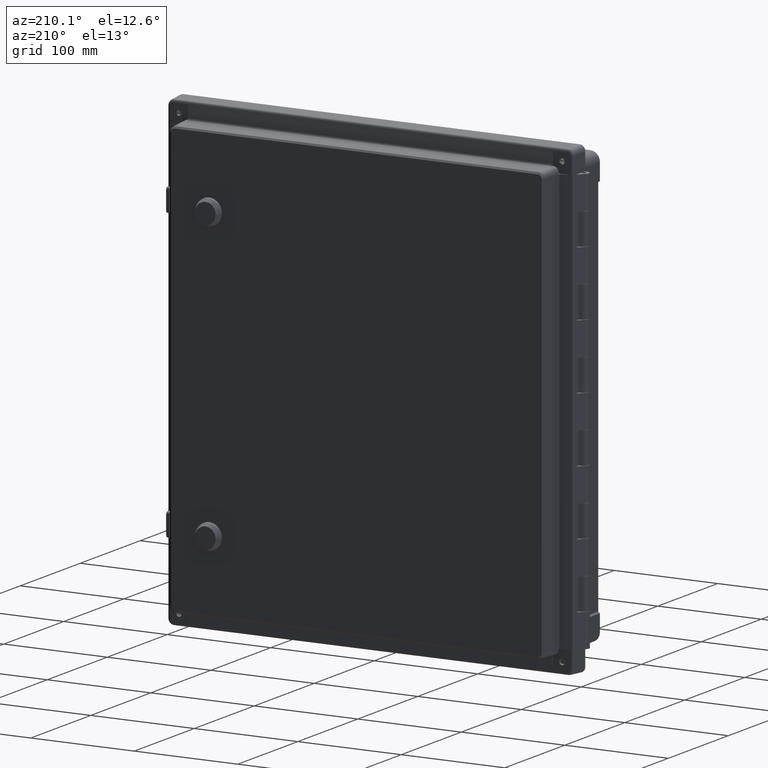
[diagram: clean part render]
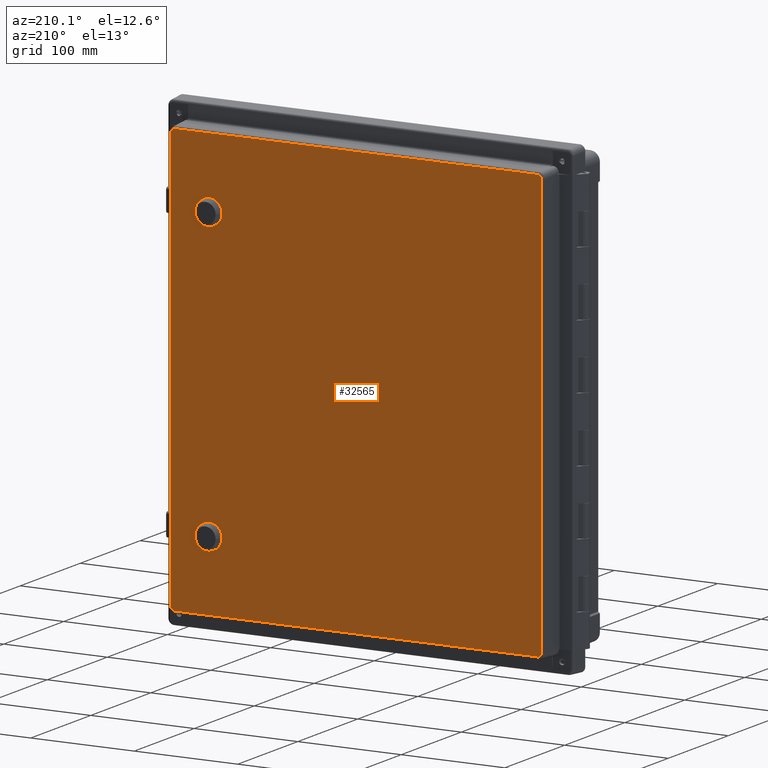
[diagram: same view with one face highlighted and labeled with its STEP entity id]
A machine part, auxiliary view. The second image highlights one B-rep face of the part: STEP entity #32565.
In plain terms, the highlighted planar face has unit normal (0, 1, 0).
Its self-contained STEP definition (entity closure, byte-faithful):
#17726=DIRECTION('',(1.E0,0.E0,0.E0));
#17727=VECTOR('',#17726,3.506083539952E2);
#17728=CARTESIAN_POINT('',(-1.753041769976E2,3.4E1,-2.066330037503E2));
#17729=LINE('',#17728,#17727);
#17764=DIRECTION('',(0.E0,0.E0,1.E0));
#17765=VECTOR('',#17764,4.056083539952E2);
#17766=CARTESIAN_POINT('',(1.791330037503E2,3.4E1,-2.028041769976E2));
#17767=LINE('',#17766,#17765);
#17802=DIRECTION('',(-1.E0,0.E0,0.E0));
#17803=VECTOR('',#17802,3.506083539952E2);
#17804=CARTESIAN_POINT('',(1.753041769976E2,3.4E1,2.066330037503E2));
#17805=LINE('',#17804,#17803);
#17840=DIRECTION('',(0.E0,0.E0,-1.E0));
#17841=VECTOR('',#17840,4.056083539952E2);
#17842=CARTESIAN_POINT('',(-1.791330037503E2,3.4E1,2.028041769976E2));
#17843=LINE('',#17842,#17841);
#17848=CARTESIAN_POINT('',(-1.753041769976E2,3.4E1,-2.066330037503E2));
#17849=CARTESIAN_POINT('',(-1.763089587539E2,3.4E1,-2.066370547404E2));
#17850=CARTESIAN_POINT('',(-1.783013967090E2,3.4E1,-2.058013967090E2));
#17851=CARTESIAN_POINT('',(-1.791370547404E2,3.4E1,-2.038089587539E2));
#17852=CARTESIAN_POINT('',(-1.791330037503E2,3.4E1,-2.028041769976E2));
#17854=CARTESIAN_POINT('',(1.791330037503E2,3.4E1,-2.028041769976E2));
#17855=CARTESIAN_POINT('',(1.791370547404E2,3.4E1,-2.038089587539E2));
#17856=CARTESIAN_POINT('',(1.783013967090E2,3.4E1,-2.058013967090E2));
#17857=CARTESIAN_POINT('',(1.763089587539E2,3.4E1,-2.066370547404E2));
#17858=CARTESIAN_POINT('',(1.753041769976E2,3.4E1,-2.066330037503E2));
#17860=CARTESIAN_POINT('',(1.753041769976E2,3.4E1,2.066330037503E2));
#17861=CARTESIAN_POINT('',(1.763089587539E2,3.4E1,2.066370547404E2));
#17862=CARTESIAN_POINT('',(1.783013967090E2,3.4E1,2.058013967090E2));
#17863=CARTESIAN_POINT('',(1.791370547404E2,3.4E1,2.038089587539E2));
#17864=CARTESIAN_POINT('',(1.791330037503E2,3.4E1,2.028041769976E2));
#17866=CARTESIAN_POINT('',(-1.791330037503E2,3.4E1,2.028041769976E2));
#17867=CARTESIAN_POINT('',(-1.791370547404E2,3.4E1,2.038089587539E2));
#17868=CARTESIAN_POINT('',(-1.783013967090E2,3.4E1,2.058013967090E2));
#17869=CARTESIAN_POINT('',(-1.763089587539E2,3.4E1,2.066370547404E2));
#17870=CARTESIAN_POINT('',(-1.753041769976E2,3.4E1,2.066330037503E2));
#17872=DIRECTION('',(0.E0,0.E0,1.E0));
#17873=VECTOR('',#17872,1.011137972781E1);
#17874=CARTESIAN_POINT('',(1.3195E2,3.4E1,-1.440556898639E2));
#17875=LINE('',#17874,#17873);
#17876=CARTESIAN_POINT('',(1.42E2,3.4E1,-1.39E2));
#17877=DIRECTION('',(0.E0,1.E0,0.E0));
#17878=DIRECTION('',(-8.933333333333E-1,0.E0,4.493946545694E-1));
#17879=AXIS2_PLACEMENT_3D('',#17876,#17877,#17878);
#17881=DIRECTION('',(1.E0,0.E0,0.E0));
#17882=VECTOR('',#17881,1.011137972781E1);
#17883=CARTESIAN_POINT('',(1.369443101361E2,3.4E1,-1.2895E2));
#17884=LINE('',#17883,#17882);
#17885=CARTESIAN_POINT('',(1.42E2,3.4E1,-1.39E2));
#17886=DIRECTION('',(0.E0,1.E0,0.E0));
#17887=DIRECTION('',(4.493946545694E-1,0.E0,8.933333333333E-1));
#17888=AXIS2_PLACEMENT_3D('',#17885,#17886,#17887);
#17890=DIRECTION('',(0.E0,0.E0,-1.E0));
#17891=VECTOR('',#17890,1.011137972781E1);
#17892=CARTESIAN_POINT('',(1.5205E2,3.4E1,-1.339443101361E2));
#17893=LINE('',#17892,#17891);
#17894=CARTESIAN_POINT('',(1.42E2,3.4E1,-1.39E2));
#17895=DIRECTION('',(0.E0,1.E0,0.E0));
#17896=DIRECTION('',(8.933333333333E-1,0.E0,-4.493946545694E-1));
#17897=AXIS2_PLACEMENT_3D('',#17894,#17895,#17896);
#17899=DIRECTION('',(-1.E0,0.E0,0.E0));
#17900=VECTOR('',#17899,1.011137972781E1);
#17901=CARTESIAN_POINT('',(1.470556898639E2,3.4E1,-1.4905E2));
#17902=LINE('',#17901,#17900);
#17903=CARTESIAN_POINT('',(1.42E2,3.4E1,-1.39E2));
#17904=DIRECTION('',(0.E0,1.E0,0.E0));
#17905=DIRECTION('',(-4.493946545694E-1,0.E0,-8.933333333333E-1));
#17906=AXIS2_PLACEMENT_3D('',#17903,#17904,#17905);
#17908=CARTESIAN_POINT('',(1.42E2,3.4E1,1.39E2));
#17909=DIRECTION('',(0.E0,1.E0,0.E0));
#17910=DIRECTION('',(-8.933333333333E-1,0.E0,4.493946545694E-1));
#17911=AXIS2_PLACEMENT_3D('',#17908,#17909,#17910);
#17913=DIRECTION('',(1.E0,0.E0,0.E0));
#17914=VECTOR('',#17913,1.011137972781E1);
#17915=CARTESIAN_POINT('',(1.369443101361E2,3.4E1,1.4905E2));
#17916=LINE('',#17915,#17914);
#17917=CARTESIAN_POINT('',(1.42E2,3.4E1,1.39E2));
#17918=DIRECTION('',(0.E0,1.E0,0.E0));
#17919=DIRECTION('',(4.493946545694E-1,0.E0,8.933333333333E-1));
#17920=AXIS2_PLACEMENT_3D('',#17917,#17918,#17919);
#17922=DIRECTION('',(0.E0,0.E0,-1.E0));
#17923=VECTOR('',#17922,1.011137972781E1);
#17924=CARTESIAN_POINT('',(1.5205E2,3.4E1,1.440556898639E2));
#17925=LINE('',#17924,#17923);
#17926=CARTESIAN_POINT('',(1.42E2,3.4E1,1.39E2));
#17927=DIRECTION('',(0.E0,1.E0,0.E0));
#17928=DIRECTION('',(8.933333333333E-1,0.E0,-4.493946545694E-1));
#17929=AXIS2_PLACEMENT_3D('',#17926,#17927,#17928);
#17931=DIRECTION('',(-1.E0,0.E0,0.E0));
#17932=VECTOR('',#17931,1.011137972781E1);
#17933=CARTESIAN_POINT('',(1.470556898639E2,3.4E1,1.2895E2));
#17934=LINE('',#17933,#17932);
#17935=CARTESIAN_POINT('',(1.42E2,3.4E1,1.39E2));
#17936=DIRECTION('',(0.E0,1.E0,0.E0));
#17937=DIRECTION('',(-4.493946545694E-1,0.E0,-8.933333333333E-1));
#17938=AXIS2_PLACEMENT_3D('',#17935,#17936,#17937);
#17940=DIRECTION('',(0.E0,0.E0,1.E0));
#17941=VECTOR('',#17940,1.011137972781E1);
#17942=CARTESIAN_POINT('',(1.3195E2,3.4E1,1.339443101361E2));
#17943=LINE('',#17942,#17941);
#26281=CARTESIAN_POINT('',(1.3195E2,3.4E1,-1.440556898639E2));
#26283=VERTEX_POINT('',#26281);
#26285=CARTESIAN_POINT('',(1.3195E2,3.4E1,-1.339443101361E2));
#26287=VERTEX_POINT('',#26285);
#26289=CARTESIAN_POINT('',(1.369443101361E2,3.4E1,-1.2895E2));
#26291=VERTEX_POINT('',#26289);
#26293=CARTESIAN_POINT('',(1.470556898639E2,3.4E1,-1.2895E2));
#26295=VERTEX_POINT('',#26293);
#26297=CARTESIAN_POINT('',(1.5205E2,3.4E1,-1.339443101361E2));
#26299=VERTEX_POINT('',#26297);
#26301=CARTESIAN_POINT('',(1.5205E2,3.4E1,-1.440556898639E2));
#26303=VERTEX_POINT('',#26301);
#26305=CARTESIAN_POINT('',(1.470556898639E2,3.4E1,-1.4905E2));
#26307=VERTEX_POINT('',#26305);
#26309=CARTESIAN_POINT('',(1.369443101361E2,3.4E1,-1.4905E2));
#26311=VERTEX_POINT('',#26309);
#26313=CARTESIAN_POINT('',(1.3195E2,3.4E1,1.440556898639E2));
#26315=VERTEX_POINT('',#26313);
#26317=CARTESIAN_POINT('',(1.369443101361E2,3.4E1,1.4905E2));
#26319=VERTEX_POINT('',#26317);
#26321=CARTESIAN_POINT('',(1.470556898639E2,3.4E1,1.4905E2));
#26323=VERTEX_POINT('',#26321);
#26325=CARTESIAN_POINT('',(1.5205E2,3.4E1,1.440556898639E2));
#26327=VERTEX_POINT('',#26325);
#26329=CARTESIAN_POINT('',(1.5205E2,3.4E1,1.339443101361E2));
#26331=VERTEX_POINT('',#26329);
#26333=CARTESIAN_POINT('',(1.470556898639E2,3.4E1,1.2895E2));
#26335=VERTEX_POINT('',#26333);
#26337=CARTESIAN_POINT('',(1.369443101361E2,3.4E1,1.2895E2));
#26339=VERTEX_POINT('',#26337);
#26341=CARTESIAN_POINT('',(1.3195E2,3.4E1,1.339443101361E2));
#26343=VERTEX_POINT('',#26341);
#28289=CARTESIAN_POINT('',(-1.753041769976E2,3.4E1,2.066330037503E2));
#28291=VERTEX_POINT('',#28289);
#28294=CARTESIAN_POINT('',(1.753041769976E2,3.4E1,2.066330037503E2));
#28295=VERTEX_POINT('',#28294);
#28470=CARTESIAN_POINT('',(1.791330037503E2,3.4E1,2.028041769976E2));
#28471=VERTEX_POINT('',#28470);
#28472=CARTESIAN_POINT('',(-1.791330037503E2,3.4E1,2.028041769976E2));
#28473=CARTESIAN_POINT('',(-1.791330037503E2,3.4E1,-2.028041769976E2));
#28474=VERTEX_POINT('',#28472);
#28475=VERTEX_POINT('',#28473);
#28476=CARTESIAN_POINT('',(1.791330037503E2,3.4E1,-2.028041769976E2));
#28477=VERTEX_POINT('',#28476);
#28478=VERTEX_POINT('',#17858);
#28479=CARTESIAN_POINT('',(-1.753041769976E2,3.4E1,-2.066330037503E2));
#28480=VERTEX_POINT('',#28479);
#32514=CARTESIAN_POINT('',(-1.825E2,3.4E1,2.1E2));
#32515=DIRECTION('',(0.E0,1.E0,0.E0));
#32516=DIRECTION('',(0.E0,0.E0,1.E0));
#32517=AXIS2_PLACEMENT_3D('',#32514,#32515,#32516);
#32518=PLANE('',#32517);
#32519=ORIENTED_EDGE('',*,*,#32507,.T.);
#32520=ORIENTED_EDGE('',*,*,#32309,.F.);
#32521=ORIENTED_EDGE('',*,*,#32325,.T.);
#32522=ORIENTED_EDGE('',*,*,#32365,.F.);
#32523=ORIENTED_EDGE('',*,*,#32400,.T.);
#32524=ORIENTED_EDGE('',*,*,#32439,.F.);
#32525=ORIENTED_EDGE('',*,*,#32454,.T.);
#32526=ORIENTED_EDGE('',*,*,#32493,.F.);
#32527=EDGE_LOOP('',(#32519,#32520,#32521,#32522,#32523,#32524,#32525,#32526));
#32528=FACE_OUTER_BOUND('',#32527,.F.);
#32530=ORIENTED_EDGE('',*,*,#32529,.T.);
#32532=ORIENTED_EDGE('',*,*,#32531,.T.);
#32534=ORIENTED_EDGE('',*,*,#32533,.T.);
#32536=ORIENTED_EDGE('',*,*,#32535,.T.);
#32538=ORIENTED_EDGE('',*,*,#32537,.T.);
#32540=ORIENTED_EDGE('',*,*,#32539,.T.);
#32542=ORIENTED_EDGE('',*,*,#32541,.T.);
#32544=ORIENTED_EDGE('',*,*,#32543,.T.);
#32545=EDGE_LOOP('',(#32530,#32532,#32534,#32536,#32538,#32540,#32542,#32544));
#32546=FACE_BOUND('',#32545,.F.);
#32548=ORIENTED_EDGE('',*,*,#32547,.T.);
#32550=ORIENTED_EDGE('',*,*,#32549,.T.);
#32552=ORIENTED_EDGE('',*,*,#32551,.T.);
#32554=ORIENTED_EDGE('',*,*,#32553,.T.);
#32556=ORIENTED_EDGE('',*,*,#32555,.T.);
#32558=ORIENTED_EDGE('',*,*,#32557,.T.);
#32560=ORIENTED_EDGE('',*,*,#32559,.T.);
#32562=ORIENTED_EDGE('',*,*,#32561,.T.);
#32563=EDGE_LOOP('',(#32548,#32550,#32552,#32554,#32556,#32558,#32560,#32562));
#32564=FACE_BOUND('',#32563,.F.);
#32565=ADVANCED_FACE('',(#32528,#32546,#32564),#32518,.T.);
#17853=B_SPLINE_CURVE_WITH_KNOTS('',3,(#17848,#17849,#17850,#17851,#17852),
.UNSPECIFIED.,.F.,.F.,(4,1,4),(0.E0,5.E-1,1.E0),.UNSPECIFIED.);
#17859=B_SPLINE_CURVE_WITH_KNOTS('',3,(#17854,#17855,#17856,#17857,#17858),
.UNSPECIFIED.,.F.,.F.,(4,1,4),(0.E0,5.E-1,1.E0),.UNSPECIFIED.);
#17865=B_SPLINE_CURVE_WITH_KNOTS('',3,(#17860,#17861,#17862,#17863,#17864),
.UNSPECIFIED.,.F.,.F.,(4,1,4),(0.E0,5.E-1,1.E0),.UNSPECIFIED.);
#17871=B_SPLINE_CURVE_WITH_KNOTS('',3,(#17866,#17867,#17868,#17869,#17870),
.UNSPECIFIED.,.F.,.F.,(4,1,4),(0.E0,5.E-1,1.E0),.UNSPECIFIED.);
#17880=CIRCLE('',#17879,1.125E1);
#17889=CIRCLE('',#17888,1.125E1);
#17898=CIRCLE('',#17897,1.125E1);
#17907=CIRCLE('',#17906,1.125E1);
#17912=CIRCLE('',#17911,1.125E1);
#17921=CIRCLE('',#17920,1.125E1);
#17930=CIRCLE('',#17929,1.125E1);
#17939=CIRCLE('',#17938,1.125E1);
#32309=EDGE_CURVE('',#28480,#28475,#17853,.T.);
#32325=EDGE_CURVE('',#28480,#28478,#17729,.T.);
#32365=EDGE_CURVE('',#28477,#28478,#17859,.T.);
#32400=EDGE_CURVE('',#28477,#28471,#17767,.T.);
#32439=EDGE_CURVE('',#28295,#28471,#17865,.T.);
#32454=EDGE_CURVE('',#28295,#28291,#17805,.T.);
#32493=EDGE_CURVE('',#28474,#28291,#17871,.T.);
#32507=EDGE_CURVE('',#28474,#28475,#17843,.T.);
#32529=EDGE_CURVE('',#26283,#26287,#17875,.T.);
#32531=EDGE_CURVE('',#26287,#26291,#17880,.T.);
#32533=EDGE_CURVE('',#26291,#26295,#17884,.T.);
#32535=EDGE_CURVE('',#26295,#26299,#17889,.T.);
#32537=EDGE_CURVE('',#26299,#26303,#17893,.T.);
#32539=EDGE_CURVE('',#26303,#26307,#17898,.T.);
#32541=EDGE_CURVE('',#26307,#26311,#17902,.T.);
#32543=EDGE_CURVE('',#26311,#26283,#17907,.T.);
#32547=EDGE_CURVE('',#26315,#26319,#17912,.T.);
#32549=EDGE_CURVE('',#26319,#26323,#17916,.T.);
#32551=EDGE_CURVE('',#26323,#26327,#17921,.T.);
#32553=EDGE_CURVE('',#26327,#26331,#17925,.T.);
#32555=EDGE_CURVE('',#26331,#26335,#17930,.T.);
#32557=EDGE_CURVE('',#26335,#26339,#17934,.T.);
#32559=EDGE_CURVE('',#26339,#26343,#17939,.T.);
#32561=EDGE_CURVE('',#26343,#26315,#17943,.T.);